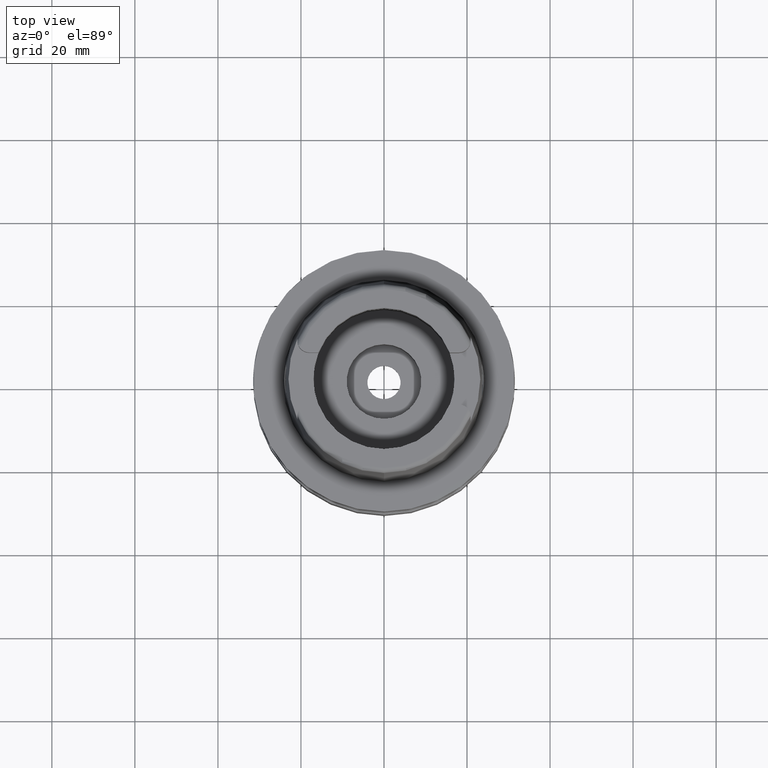
[diagram: clean part render]
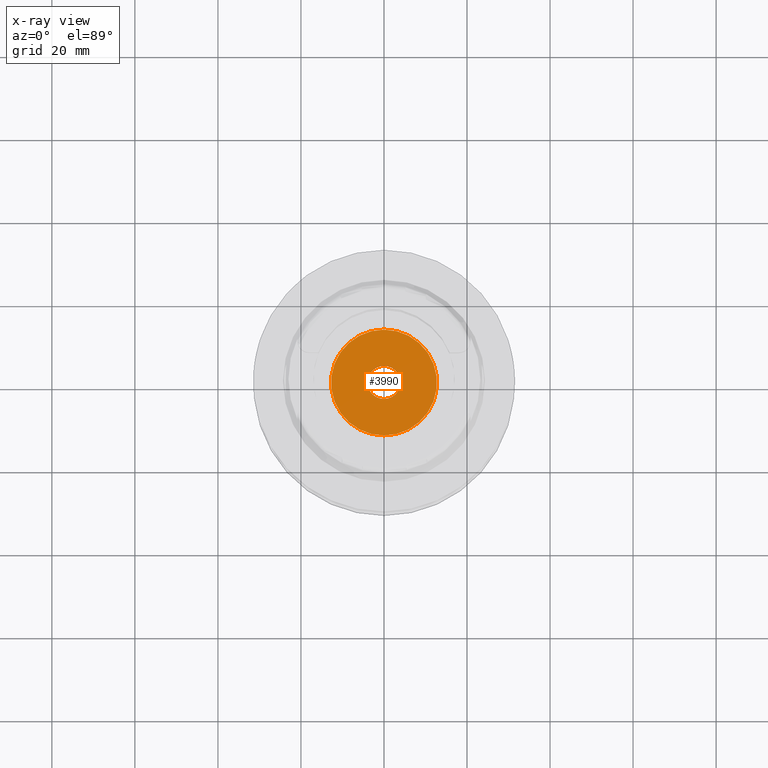
[diagram: x-ray — body ghosted, one internal face saturated and labeled with its STEP entity id]
A machine part, top view, then the same camera in x-ray: the body is ghosted and one INTERNAL B-rep face — a face not visible from any outside direction — is saturated and labeled: STEP entity #3990.
In plain terms, the highlighted planar face has unit normal (0, 0, -1).
Its self-contained STEP definition (entity closure, byte-faithful):
#1884=CARTESIAN_POINT('',(0.E0,1.709606931610E-14,-2.5E1));
#1885=DIRECTION('',(0.E0,0.E0,1.E0));
#1886=DIRECTION('',(0.E0,-1.E0,0.E0));
#1887=AXIS2_PLACEMENT_3D('',#1884,#1885,#1886);
#1892=CARTESIAN_POINT('',(0.E0,1.709606931610E-14,-2.5E1));
#1893=DIRECTION('',(0.E0,0.E0,1.E0));
#1894=DIRECTION('',(0.E0,1.E0,0.E0));
#1895=AXIS2_PLACEMENT_3D('',#1892,#1893,#1894);
#1900=CARTESIAN_POINT('',(0.E0,1.709606931610E-14,-2.5E1));
#1901=DIRECTION('',(0.E0,0.E0,-1.E0));
#1902=DIRECTION('',(0.E0,-1.E0,0.E0));
#1903=AXIS2_PLACEMENT_3D('',#1900,#1901,#1902);
#1908=CARTESIAN_POINT('',(0.E0,1.709606931610E-14,-2.5E1));
#1909=DIRECTION('',(0.E0,0.E0,-1.E0));
#1910=DIRECTION('',(0.E0,1.E0,0.E0));
#1911=AXIS2_PLACEMENT_3D('',#1908,#1909,#1910);
#2519=CARTESIAN_POINT('',(0.E0,1.275E1,-2.5E1));
#2520=VERTEX_POINT('',#2519);
#2521=CARTESIAN_POINT('',(0.E0,-1.275E1,-2.5E1));
#2522=VERTEX_POINT('',#2521);
#2523=CARTESIAN_POINT('',(0.E0,-4.E0,-2.5E1));
#2524=CARTESIAN_POINT('',(0.E0,4.E0,-2.5E1));
#2525=VERTEX_POINT('',#2523);
#2526=VERTEX_POINT('',#2524);
#3975=CARTESIAN_POINT('',(0.E0,0.E0,-2.5E1));
#3976=DIRECTION('',(0.E0,0.E0,-1.E0));
#3977=DIRECTION('',(0.E0,-1.E0,0.E0));
#3978=AXIS2_PLACEMENT_3D('',#3975,#3976,#3977);
#3979=PLANE('',#3978);
#3980=ORIENTED_EDGE('',*,*,#3968,.T.);
#3981=ORIENTED_EDGE('',*,*,#3957,.T.);
#3982=EDGE_LOOP('',(#3980,#3981));
#3983=FACE_OUTER_BOUND('',#3982,.F.);
#3985=ORIENTED_EDGE('',*,*,#3984,.T.);
#3987=ORIENTED_EDGE('',*,*,#3986,.T.);
#3988=EDGE_LOOP('',(#3985,#3987));
#3989=FACE_BOUND('',#3988,.F.);
#1888=CIRCLE('',#1887,1.275E1);
#1896=CIRCLE('',#1895,1.275E1);
#1904=CIRCLE('',#1903,4.E0);
#1912=CIRCLE('',#1911,4.E0);
#3957=EDGE_CURVE('',#2520,#2522,#1896,.T.);
#3968=EDGE_CURVE('',#2522,#2520,#1888,.T.);
#3984=EDGE_CURVE('',#2525,#2526,#1904,.T.);
#3986=EDGE_CURVE('',#2526,#2525,#1912,.T.);
#3990=ADVANCED_FACE('',(#3983,#3989),#3979,.T.);